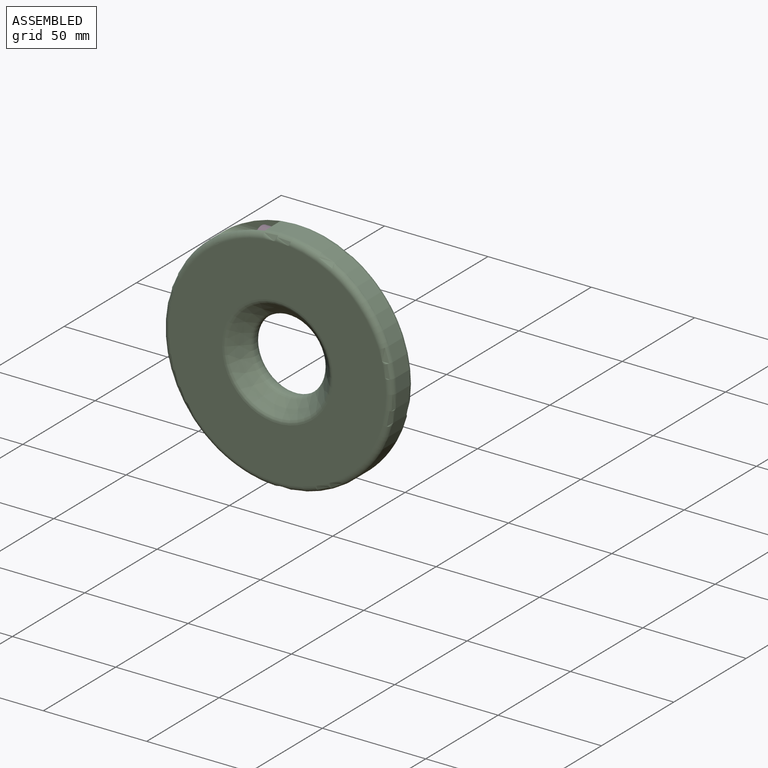
[diagram: assembled view]
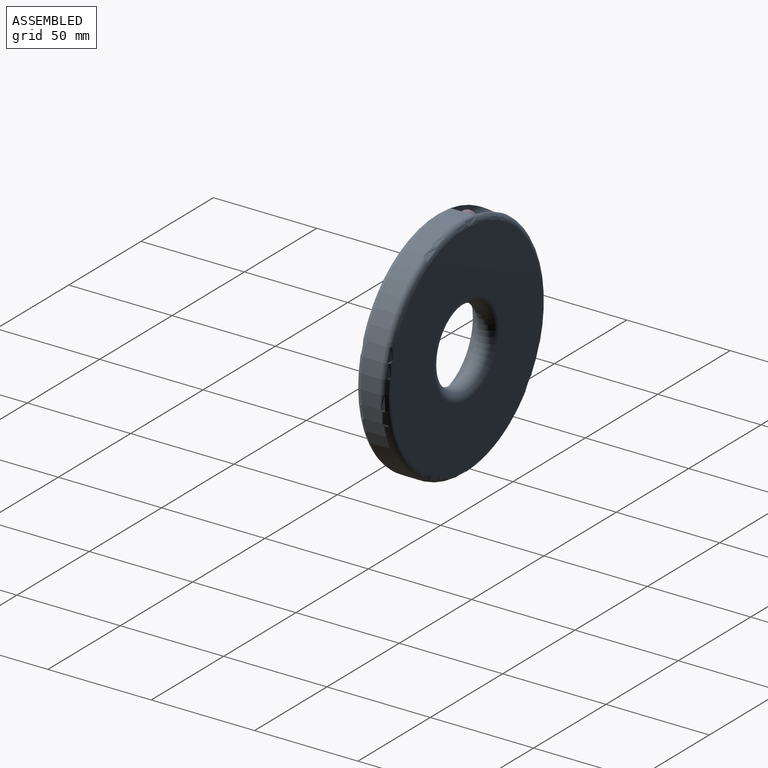
[diagram: assembled view, second angle]
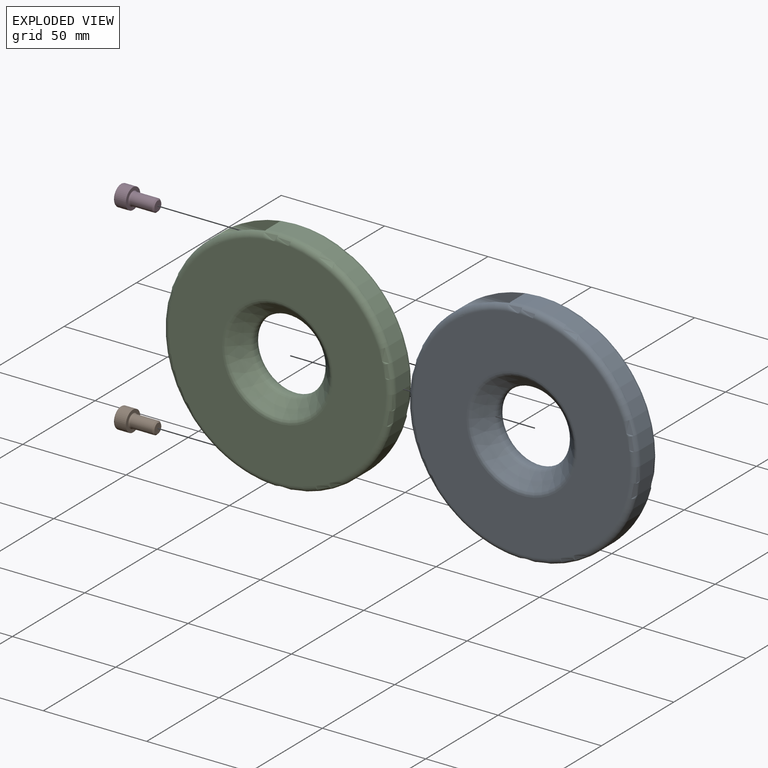
[diagram: exploded view]
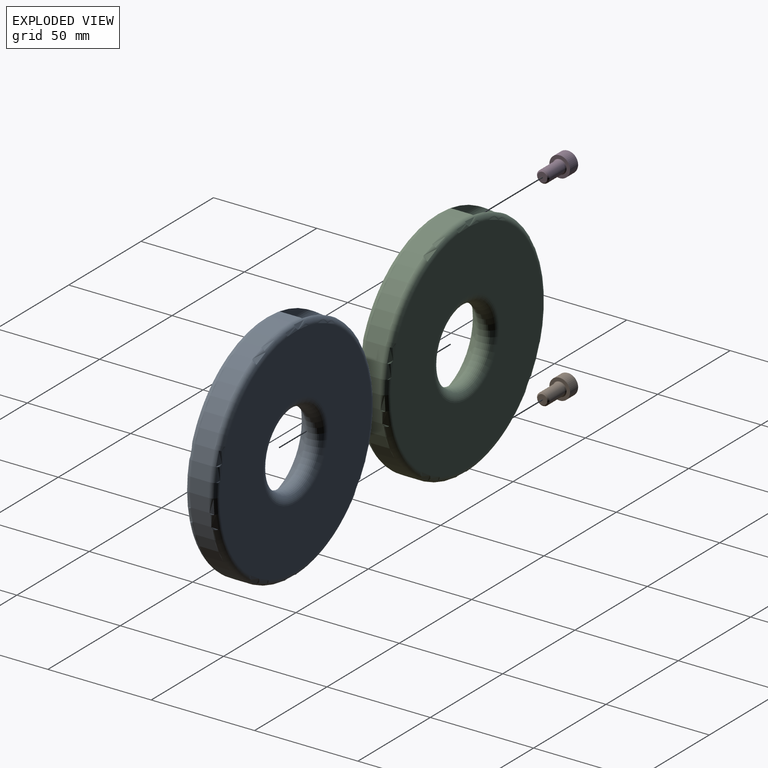
[diagram: exploded view, second angle]
ASSEMBLY  parts=4 mates=2
PART A: 27 faces, bbox 120.2x15x120.2 mm
  f0: cylinder r=55.5mm len=111mm, axis (0,1,0), area 1701mm2, adj f2,f3,f11,f19
  f1: cylinder r=55.5mm len=90.94mm, axis (0,1,0), area 909.6mm2, adj f2,f3,f9,f18
  f2: torus R=52.5mm, axis (0,-1,0), area 1560.9mm2, adj f0,f1,f6,f9,f10,f11,f17,f18
  f3: torus R=52.5mm, axis (0,-1,0), area 1560.9mm2, adj f0,f1,f5,f8,f9,f11,f16,f18
  f4: cylinder r=17.5mm len=35mm, axis (0,1,0), area 83.3mm2, adj f7,f25
  f5: plane 105x105mm, normal (0,-1,0), area 6412.2mm2, adj f3,f26
  f6: plane 105x105mm, normal (0,1,0), area 7068.6mm2, adj f2,f7
  f7: torus R=22.5mm, axis (0,-1,0), area 953.3mm2, adj f4,f6
  f8: plane 19.09x6.21mm, normal (0,1,0), area 71.6mm2, adj f3,f9,f11
  f9: cylinder r=5.5mm len=27.63mm, axis (0,0,-1), area 428.5mm2, adj f1,f2,f3,f8,f10,f11
  f10: plane 19.09x6.21mm, normal (0,-1,0), area 71.6mm2, adj f2,f9,f11
  f11: plane 11.9x11.02mm, normal (0,0,1), area 89.4mm2, adj f0,f2,f3,f8,f9,f10,f13
  f12: cone r=0mm half-angle=59deg, axis (0,0,1), area 10.1mm2, adj f13,f15
  f13: cylinder r=3mm len=7.3mm, axis (0,0,1), area 137.6mm2, adj f11,f12
  f14: cone r=0mm half-angle=59deg, axis (0,0,1), area 22.9mm2, adj f15
  f15: cylinder r=2.5mm len=11.7mm, axis (0,0,1), area 183.8mm2, adj f12,f14
  f16: plane 19.09x6.21mm, normal (0,1,0), area 71.6mm2, adj f3,f18,f19
  f17: plane 19.09x6.21mm, normal (0,-1,0), area 71.6mm2, adj f2,f18,f19
  f18: cylinder r=5.5mm len=27.63mm, axis (0,0,-1), area 428.5mm2, adj f1,f2,f3,f16,f17,f19
  f19: plane 11.9x11.02mm, normal (0,0,1), area 89.4mm2, adj f0,f2,f3,f16,f17,f18,f21
  f20: cone r=0mm half-angle=59deg, axis (0,0,1), area 10.1mm2, adj f21,f23
  f21: cylinder r=3mm len=7.3mm, axis (0,0,1), area 137.6mm2, adj f19,f20
  f22: cone r=0mm half-angle=59deg, axis (0,0,1), area 22.9mm2, adj f23
  f23: cylinder r=2.5mm len=11.7mm, axis (0,0,1), area 183.8mm2, adj f20,f22
  f24: cone r=17.5mm half-angle=45deg, axis (0,-1,0), area 1192.6mm2, adj f25,f26
  f25: torus R=20.5mm, axis (0,1,0), area 263.5mm2, adj f4,f24
  f26: torus R=26.74mm, axis (0,-1,0), area 379.3mm2, adj f5,f24
PART B: 29 faces, bbox 18x10.8x10.8 mm
  f0: cone r=2.5mm half-angle=45deg, axis (-1,0,0), area 1mm2, adj f6,f22
  f1: cone r=2.5mm half-angle=45deg, axis (-1,0,0), area 1mm2, adj f6,f23
  f2: cone r=2.5mm half-angle=45deg, axis (-1,0,0), area 1mm2, adj f6,f24
  f3: cone r=2.5mm half-angle=45deg, axis (-1,0,0), area 1mm2, adj f6,f26
  f4: cone r=2.5mm half-angle=45deg, axis (-1,0,0), area 1mm2, adj f6,f25
  f5: cone r=2.5mm half-angle=45deg, axis (-1,0,0), area 1mm2, adj f6,f27
  f6: plane 8.8x8.8mm, normal (-1,0,0), area 35.1mm2, adj f0,f1,f2,f3,f4,f5,f7,f22
  f7: torus R=4.4mm, axis (1,0,0), area 28.3mm2, adj f6,f8
  f8: cylinder r=5mm len=10mm, axis (1,0,0), area 169.6mm2, adj f7,f9
  f9: plane 10x10mm, normal (1,0,0), area 42.2mm2, adj f8,f10
  f10: torus R=3.4mm, axis (1,0,0), area 6.3mm2, adj f9,f11
  f11: cone r=3.16mm half-angle=19.2deg, axis (-1,0,0), area 8.8mm2, adj f10,f12
  f12: torus R=3.25mm, axis (1,0,0), area 1.6mm2, adj f11,f13
  f13: cylinder r=3mm len=10.71mm, axis (1,0,0), area 201.8mm2, adj f12,f14
  f14: cone r=3mm half-angle=45deg, axis (-1,0,0), area 14.7mm2, adj f13,f15
  f15: plane 4.77x4.77mm, normal (1,0,0), area 17.9mm2, adj f14
  f16: plane 2.17x1.25mm, normal (-1,0,0), area 0.3mm2, adj f24,f25,f28
  f17: plane 2.5x0.72mm, normal (-1,0,0), area 0.3mm2, adj f23,f24,f28
  f18: plane 2.17x1.25mm, normal (-1,0,0), area 0.3mm2, adj f22,f23,f28
  f19: plane 2.17x1.25mm, normal (-1,0,0), area 0.3mm2, adj f22,f27,f28
  f20: plane 2.5x0.72mm, normal (-1,0,0), area 0.3mm2, adj f26,f27,f28
  f21: plane 2.17x1.25mm, normal (-1,0,0), area 0.3mm2, adj f25,f26,f28
  f22: plane 3.7x2.89mm, normal (0,0,-1), area 10mm2, adj f0,f6,f18,f19,f23,f27
  f23: plane 3.7x2.5mm, normal (0,0.87,-0.5), area 10mm2, adj f1,f6,f17,f18,f22,f24
  f24: plane 3.7x2.5mm, normal (0,0.87,0.5), area 10mm2, adj f2,f6,f16,f17,f23,f25
  f25: plane 3.7x2.89mm, normal (0,0,1), area 10mm2, adj f4,f6,f16,f21,f24,f26
  f26: plane 3.7x2.5mm, normal (0,-0.87,0.5), area 10mm2, adj f3,f6,f20,f21,f25,f27
  f27: plane 3.7x2.5mm, normal (0,-0.87,-0.5), area 10mm2, adj f5,f6,f19,f20,f22,f26
  f28: cone r=0mm half-angle=60deg, axis (-1,0,0), area 22.7mm2, adj f16,f17,f18,f19,f20,f21
PART C: same geometry as A
PART D: same geometry as B
PLACE A rot(axis=(0,-1,0),90deg) t=(9.71,-23.19,25.93)mm
PLACE B t=(2.41,-23.19,-22.7)mm
PLACE C rot(axis=(0,-1,0),90deg) t=(9.71,-23.19,25.93)mm
PLACE D t=(2.41,-23.19,74.56)mm
MATE fastened C.f9 <-> B.f11  axis (1,0,0) through (2.41,-23.19,-22.7)mm
MATE fastened D.f11 <-> C.f18  axis (1,0,0) through (2.41,-23.19,74.56)mm
